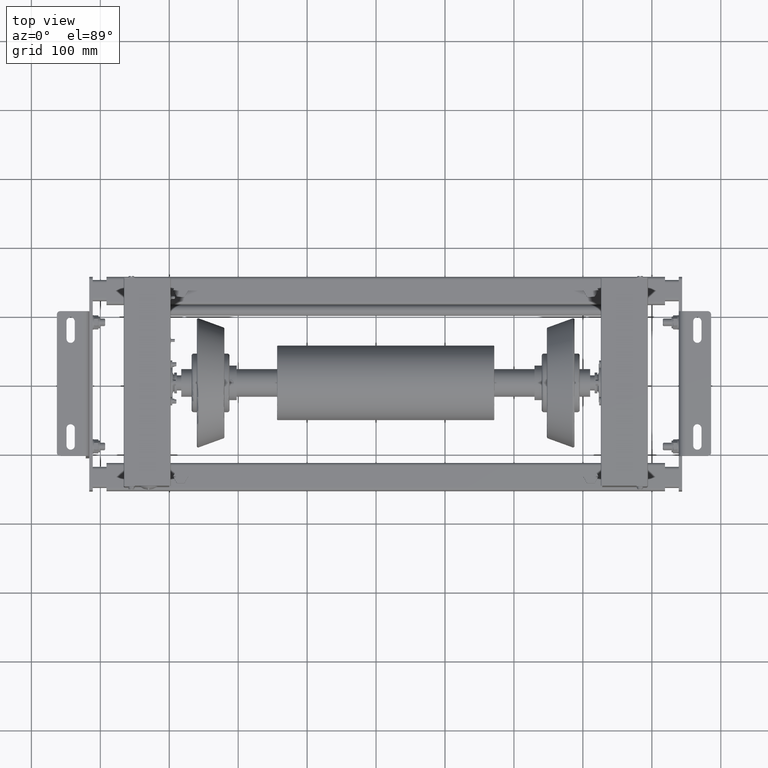
[diagram: clean part render]
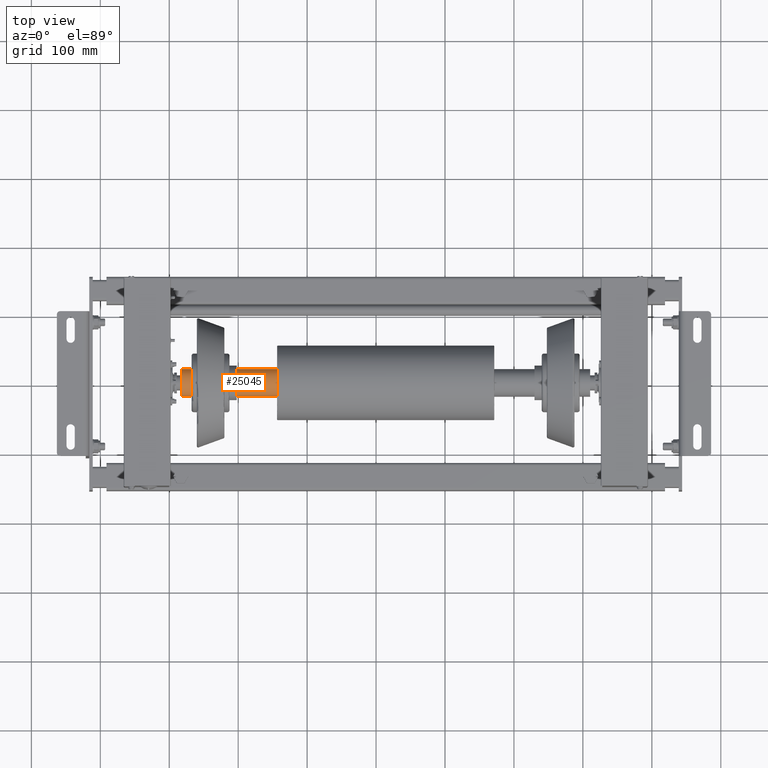
[diagram: same view with one face highlighted and labeled with its STEP entity id]
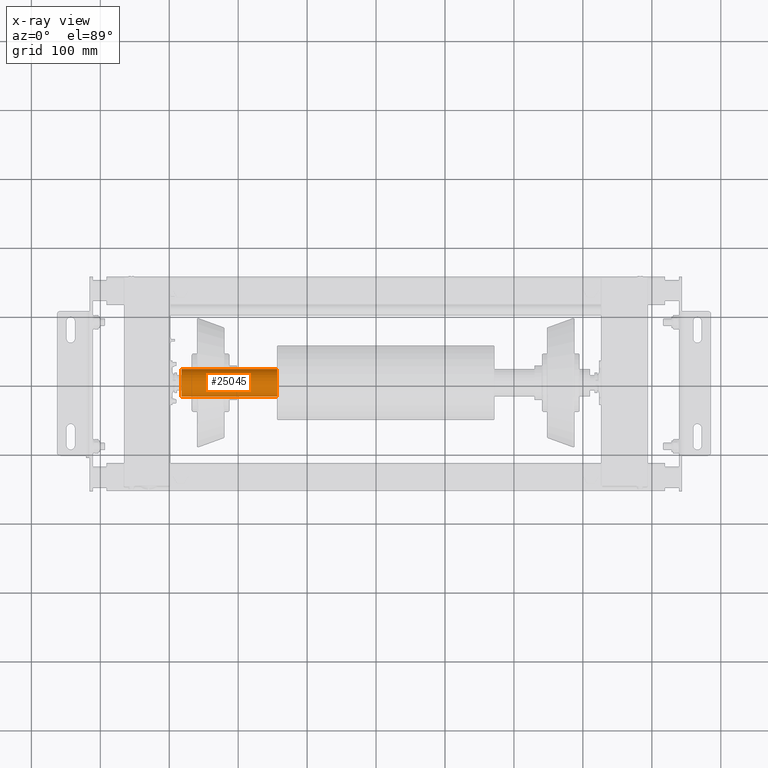
[diagram: x-ray of the same camera — body ghosted, the highlighted face saturated]
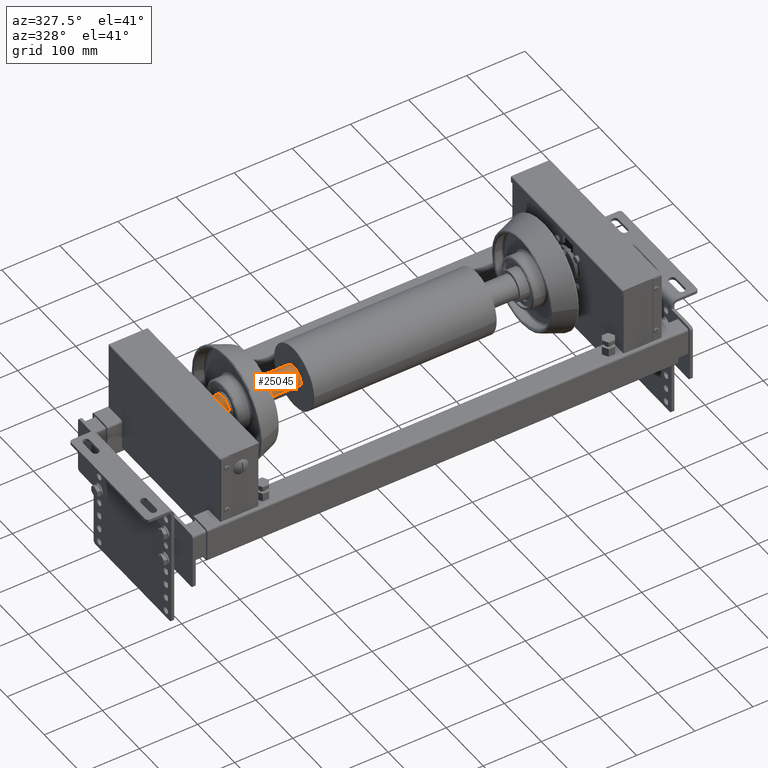
[diagram: same view with one face highlighted and labeled with its STEP entity id]
A machine part, top view. The second image highlights one B-rep face of the part: STEP entity #25045.
The next image is the same camera in x-ray: the body ghosted, the highlighted face saturated — about 0% of this face is hidden behind the body in this view.
A second angle (auxiliary view) of the same face is appended — the face is thin or edge-on in the first view.
In plain terms, the highlighted cylindrical surface (edge-blend (fillet) strip) has radius 20 mm, axis along (1, 0, 0).
Its self-contained STEP definition (entity closure, byte-faithful):
#23871=CARTESIAN_POINT('',(-365.0,20.000000000000028,0.0));
#23872=VERTEX_POINT('',#23871);
#23873=CARTESIAN_POINT('',(-503.999999999999940,20.0,0.0));
#23874=VERTEX_POINT('',#23873);
#23875=CARTESIAN_POINT('',(-365.0,20.000000000000028,0.0));
#23876=DIRECTION('',(-1.0,0.0,0.0));
#23877=VECTOR('',#23876,138.999999999999940);
#23878=LINE('',#23875,#23877);
#23879=EDGE_CURVE('',#23872,#23874,#23878,.T.);
#23881=CARTESIAN_POINT('',(-365.0,-20.000000000000014,-2.449294E-015));
#23882=VERTEX_POINT('',#23881);
#23890=CARTESIAN_POINT('',(-504.0,-20.000000000000014,-2.449294E-015));
#23891=VERTEX_POINT('',#23890);
#23892=CARTESIAN_POINT('',(-365.0,-20.000000000000014,-2.449294E-015));
#23893=DIRECTION('',(-1.0,0.0,0.0));
#23894=VECTOR('',#23893,139.0);
#23895=LINE('',#23892,#23894);
#23896=EDGE_CURVE('',#23882,#23891,#23895,.T.);
#25013=CARTESIAN_POINT('',(-504.0,0.0,0.0));
#25014=DIRECTION('',(1.0,0.0,0.0));
#25015=DIRECTION('',(0.0,1.0,0.0));
#25016=AXIS2_PLACEMENT_3D('',#25013,#25014,#25015);
#25017=CIRCLE('',#25016,20.0);
#25018=EDGE_CURVE('',#23874,#23891,#25017,.T.);
#25028=CARTESIAN_POINT('',(-434.500000000000000,0.0,0.0));
#25029=DIRECTION('',(1.0,0.0,0.0));
#25030=DIRECTION('',(0.0,1.0,0.0));
#25031=AXIS2_PLACEMENT_3D('',#25028,#25029,#25030);
#25032=CYLINDRICAL_SURFACE('',#25031,20.000000000000014);
#25033=ORIENTED_EDGE('',*,*,#23879,.T.);
#25034=ORIENTED_EDGE('',*,*,#25018,.T.);
#25035=ORIENTED_EDGE('',*,*,#23896,.F.);
#25036=CARTESIAN_POINT('',(-365.0,0.0,0.0));
#25037=DIRECTION('',(1.0,0.0,0.0));
#25038=DIRECTION('',(0.0,1.0,0.0));
#25039=AXIS2_PLACEMENT_3D('',#25036,#25037,#25038);
#25040=CIRCLE('',#25039,20.000000000000028);
#25041=EDGE_CURVE('',#23872,#23882,#25040,.T.);
#25042=ORIENTED_EDGE('',*,*,#25041,.F.);
#25043=EDGE_LOOP('',(#25033,#25034,#25035,#25042));
#25044=FACE_OUTER_BOUND('',#25043,.T.);
#25045=ADVANCED_FACE('',(#25044),#25032,.T.);